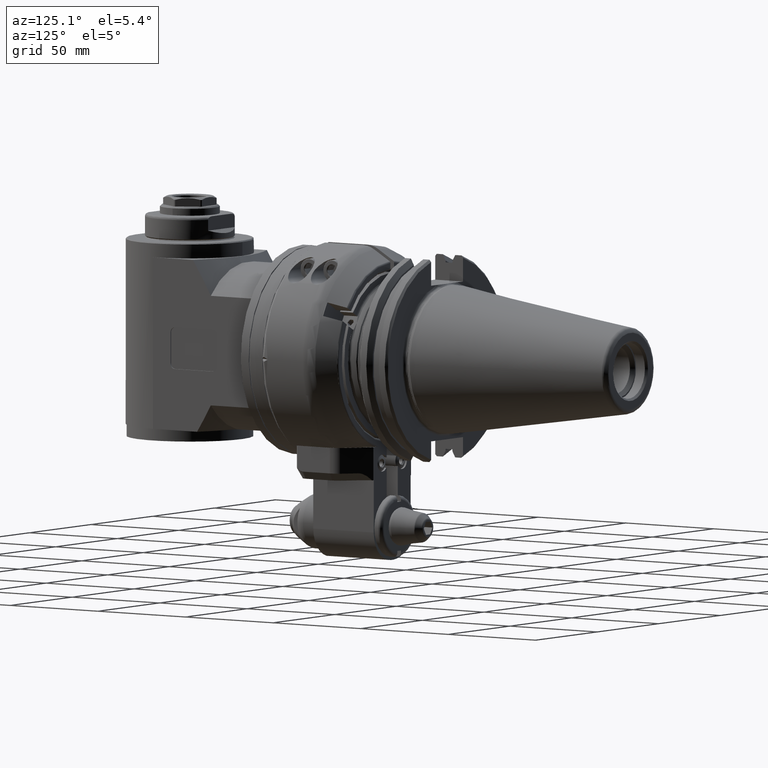
[diagram: clean part render]
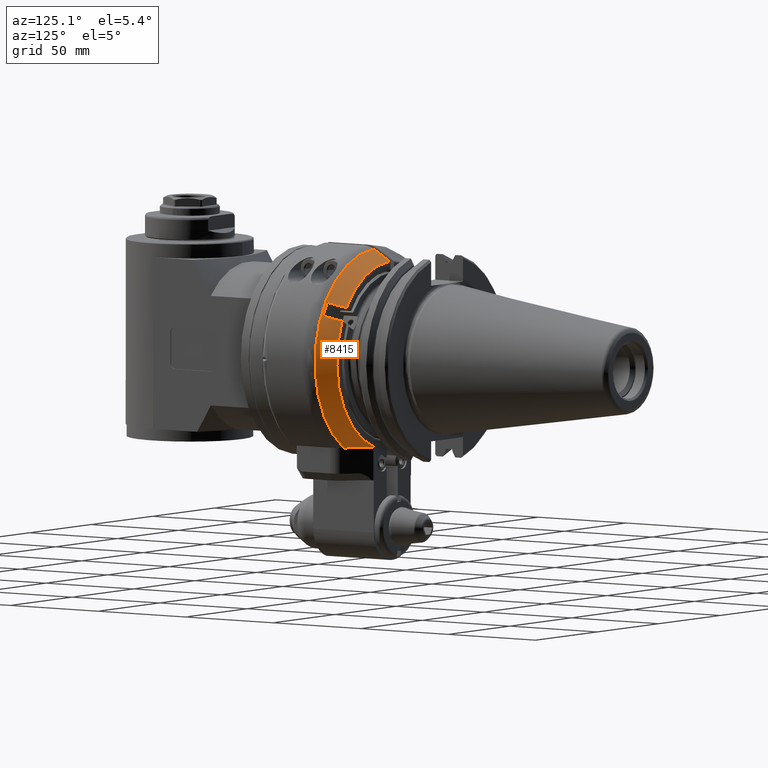
[diagram: same view with one face highlighted and labeled with its STEP entity id]
A machine part, auxiliary view. The second image highlights one B-rep face of the part: STEP entity #8415.
In plain terms, the highlighted conical surface has half-angle 30 deg.
Its self-contained STEP definition (entity closure, byte-faithful):
#81=B_SPLINE_CURVE_WITH_KNOTS('',3,(#14413,#14414,#14415,#14416,#14417,
#14418,#14419,#14420,#14421,#14422),.UNSPECIFIED.,.F.,.F.,(4,3,3,4),(7.64808079591894E-6,
0.3333333333333,0.6666666666667,1.),.UNSPECIFIED.);
#82=B_SPLINE_CURVE_WITH_KNOTS('',3,(#14443,#14444,#14445,#14446,#14447,
#14448,#14449,#14450,#14451,#14452),.UNSPECIFIED.,.F.,.F.,(4,3,3,4),(0.,
0.3333333333333,0.6666666666667,0.999992860330349),.UNSPECIFIED.);
#84=B_SPLINE_CURVE_WITH_KNOTS('',3,(#14490,#14491,#14492,#14493,#14494,
#14495,#14496,#14497,#14498,#14499),.UNSPECIFIED.,.F.,.F.,(4,3,3,4),(2.49654512762829E-6,
0.3333333333333,0.6666666666667,1.),.UNSPECIFIED.);
#167=(
BOUNDED_CURVE()
B_SPLINE_CURVE(2,(#14485,#14486,#14487),.UNSPECIFIED.,.F.,.F.)
B_SPLINE_CURVE_WITH_KNOTS((3,3),(-4.73034461103832,-2.8844916612604),
 .UNSPECIFIED.)
CURVE()
GEOMETRIC_REPRESENTATION_ITEM()
RATIONAL_B_SPLINE_CURVE((1.01131829643773,1.03049774920425,1.03298555492067))
REPRESENTATION_ITEM('')
);
#208=CONICAL_SURFACE('',#9139,46.84048999,0.523598775598299);
#2077=FACE_OUTER_BOUND('',#2607,.T.);
#2607=EDGE_LOOP('',(#6231,#6232,#6233,#6234,#6235,#6236,#6237,#6238));
#3249=CIRCLE('',#9123,48.90747728811);
#3256=CIRCLE('',#9138,44.28867513459);
#3257=CIRCLE('',#9140,44.28867513459);
#3258=CIRCLE('',#9141,49.39230484541);
#3831=VERTEX_POINT('',#14410);
#3832=VERTEX_POINT('',#14412);
#3834=VERTEX_POINT('',#14426);
#3840=VERTEX_POINT('',#14441);
#3845=VERTEX_POINT('',#14479);
#3846=VERTEX_POINT('',#14483);
#3847=VERTEX_POINT('',#14484);
#3848=VERTEX_POINT('',#14489);
#4741=EDGE_CURVE('',#3832,#3831,#81,.T.);
#4744=EDGE_CURVE('',#3834,#3831,#3249,.T.);
#4752=EDGE_CURVE('',#3834,#3840,#82,.T.);
#4761=EDGE_CURVE('',#3845,#3840,#3256,.T.);
#4762=EDGE_CURVE('',#3846,#3847,#167,.T.);
#4763=EDGE_CURVE('',#3832,#3846,#3257,.T.);
#4764=EDGE_CURVE('',#3845,#3848,#84,.T.);
#4765=EDGE_CURVE('',#3847,#3848,#3258,.T.);
#6231=ORIENTED_EDGE('',*,*,#4762,.F.);
#6232=ORIENTED_EDGE('',*,*,#4763,.F.);
#6233=ORIENTED_EDGE('',*,*,#4741,.T.);
#6234=ORIENTED_EDGE('',*,*,#4744,.F.);
#6235=ORIENTED_EDGE('',*,*,#4752,.T.);
#6236=ORIENTED_EDGE('',*,*,#4761,.F.);
#6237=ORIENTED_EDGE('',*,*,#4764,.T.);
#6238=ORIENTED_EDGE('',*,*,#4765,.F.);
#8415=ADVANCED_FACE('',(#2077),#208,.T.);
#9123=AXIS2_PLACEMENT_3D('',#14428,#10492,#10493);
#9138=AXIS2_PLACEMENT_3D('',#14481,#10527,#10528);
#9139=AXIS2_PLACEMENT_3D('',#14482,#10529,#10530);
#9140=AXIS2_PLACEMENT_3D('',#14488,#10531,#10532);
#9141=AXIS2_PLACEMENT_3D('',#14500,#10533,#10534);
#10492=DIRECTION('center_axis',(0.,1.,0.));
#10493=DIRECTION('ref_axis',(0.828023092261376,0.,0.560693997365684));
#10527=DIRECTION('center_axis',(0.,1.,0.));
#10528=DIRECTION('ref_axis',(0.0338687033523017,0.,0.999426290895549));
#10529=DIRECTION('center_axis',(0.,-1.,0.));
#10530=DIRECTION('ref_axis',(0.,0.,1.));
#10531=DIRECTION('center_axis',(0.,1.,0.));
#10532=DIRECTION('ref_axis',(0.902830377486504,0.,0.429996871485802));
#10533=DIRECTION('center_axis',(0.,-1.,0.));
#10534=DIRECTION('ref_axis',(0.526241939180605,0.,-0.850334887822108));
#14410=CARTESIAN_POINT('',(43.9965205788,31.,21.35995111525));
#14412=CARTESIAN_POINT('',(39.9851327385034,39.0000574311689,19.0439746816783));
#14413=CARTESIAN_POINT('Ctrl Pts',(39.9851325718318,39.0000574888265,19.0439751696038));
#14414=CARTESIAN_POINT('Ctrl Pts',(40.4028201731212,38.1672949367025,19.2851272186454));
#14415=CARTESIAN_POINT('Ctrl Pts',(40.8297581566054,37.316004008875,19.5316199783373));
#14416=CARTESIAN_POINT('Ctrl Pts',(41.2658511125018,36.4463726661394,19.7833983638158));
#14417=CARTESIAN_POINT('Ctrl Pts',(41.7019540744505,35.5767213699134,20.0351825262913));
#14418=CARTESIAN_POINT('Ctrl Pts',(42.1472124289337,34.6887288171366,20.2922525571111));
#14419=CARTESIAN_POINT('Ctrl Pts',(42.6022543845856,33.7811396438956,20.5549711526993));
#14420=CARTESIAN_POINT('Ctrl Pts',(43.0572963402373,32.8735504706549,20.8176897482874));
#14421=CARTESIAN_POINT('Ctrl Pts',(43.5221218970577,31.94636467695,21.0860569086439));
#14422=CARTESIAN_POINT('Ctrl Pts',(43.9965205787995,31.,21.3599511152508));
#14426=CARTESIAN_POINT('',(40.4965205788,31.,27.42212894174));
#14428=CARTESIAN_POINT('Origin',(0.,31.,0.));
#14441=CARTESIAN_POINT('',(36.4851341375779,39.0000536663802,25.1061544459898));
#14443=CARTESIAN_POINT('Ctrl Pts',(40.4965205787991,31.,27.4221289417415));
#14444=CARTESIAN_POINT('Ctrl Pts',(40.0225764959703,31.94545781027,27.1484971979394));
#14445=CARTESIAN_POINT('Ctrl Pts',(39.5580534457766,32.8720403026249,26.8803046898653));
#14446=CARTESIAN_POINT('Ctrl Pts',(39.1031488890378,33.7793555389856,26.6176654215765));
#14447=CARTESIAN_POINT('Ctrl Pts',(38.6482443322988,34.6866707753466,26.3550261532877));
#14448=CARTESIAN_POINT('Ctrl Pts',(38.2029582690147,35.5747187557134,26.0979401247842));
#14449=CARTESIAN_POINT('Ctrl Pts',(37.7667012936418,36.4446772840419,25.8460670426168));
#14450=CARTESIAN_POINT('Ctrl Pts',(37.3304536624611,37.3146171787206,25.5941993553213));
#14451=CARTESIAN_POINT('Ctrl Pts',(36.9032347324075,38.166468396269,25.3475443910519));
#14452=CARTESIAN_POINT('Ctrl Pts',(36.4851344544517,39.0000537201733,25.1061540830258));
#14479=CARTESIAN_POINT('',(1.49999993762843,39.0000000328687,44.263266303079));
#14481=CARTESIAN_POINT('Origin',(0.,39.,0.));
#14482=CARTESIAN_POINT('Origin',(0.,34.58012701892,0.));
#14483=CARTESIAN_POINT('',(14.0529977311659,38.9999999992152,-41.9999999998256));
#14484=CARTESIAN_POINT('',(25.9923022786687,30.1602540402197,-42.0000000007218));
#14485=CARTESIAN_POINT('Ctrl Pts',(14.0529977312731,38.9999999988667,-42.));
#14486=CARTESIAN_POINT('Ctrl Pts',(19.6974303635387,35.8978898923124,-42.));
#14487=CARTESIAN_POINT('Ctrl Pts',(25.9923022780362,30.1602540418579,-42.));
#14488=CARTESIAN_POINT('Origin',(0.,39.,0.));
#14489=CARTESIAN_POINT('',(1.50000009631114,30.160265019228,49.3695164173488));
#14490=CARTESIAN_POINT('Ctrl Pts',(1.5,39.0000000332567,44.2632663037564));
#14491=CARTESIAN_POINT('Ctrl Pts',(1.5,38.0634574106393,44.8042898289913));
#14492=CARTESIAN_POINT('Ctrl Pts',(1.5,37.1117351946827,45.3540709411782));
#14493=CARTESIAN_POINT('Ctrl Pts',(1.5,36.1449814272736,45.9125242931707));
#14494=CARTESIAN_POINT('Ctrl Pts',(1.5,35.1782204191768,46.4709818278066));
#14495=CARTESIAN_POINT('Ctrl Pts',(1.5,34.1964276344632,47.0381117321534));
#14496=CARTESIAN_POINT('Ctrl Pts',(1.5,33.1990327612114,47.6142436071818));
#14497=CARTESIAN_POINT('Ctrl Pts',(1.5,32.2016378879598,48.1903754822101));
#14498=CARTESIAN_POINT('Ctrl Pts',(1.5,31.18864092617,48.77550932792));
#14499=CARTESIAN_POINT('Ctrl Pts',(1.5,30.16027599869,49.36951007704));
#14500=CARTESIAN_POINT('Origin',(0.,30.16025403784,0.));